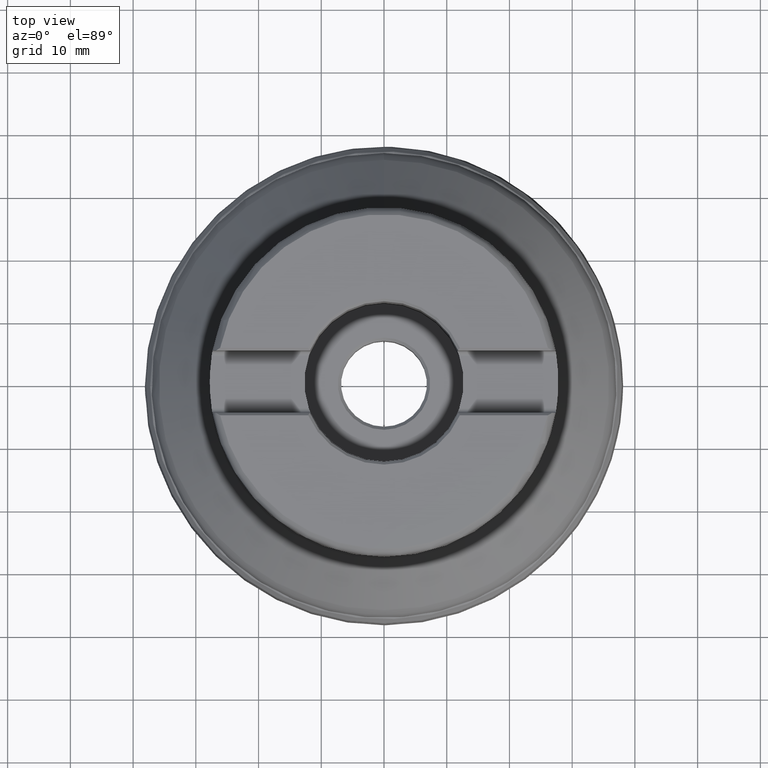
[diagram: clean part render]
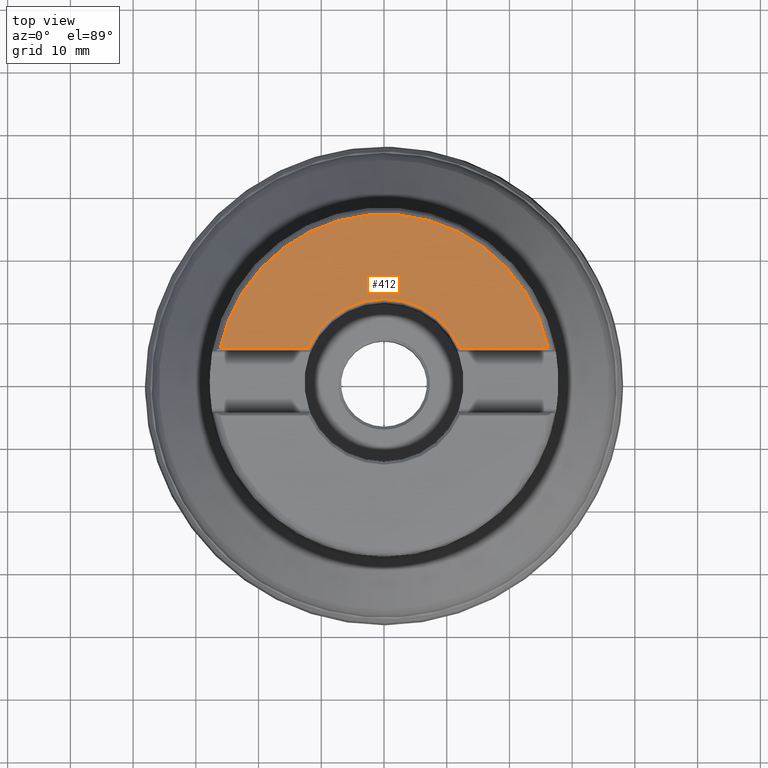
[diagram: same view with one face highlighted and labeled with its STEP entity id]
A machine part, top view. The second image highlights one B-rep face of the part: STEP entity #412.
In plain terms, the highlighted planar face has unit normal (0, 0, 1).
Its self-contained STEP definition (entity closure, byte-faithful):
#302=PLANE('',#1293);
#307=LINE('',#1933,#334);
#309=LINE('',#1953,#336);
#334=VECTOR('',#1332,1.);
#336=VECTOR('',#1344,1.);
#412=ADVANCED_FACE('',(#473),#302,.T.);
#473=FACE_OUTER_BOUND('',#555,.T.);
#555=EDGE_LOOP('',(#857,#858,#859,#860));
#604=CIRCLE('',#1195,26.6717797887081);
#608=CIRCLE('',#1203,13.2368226782816);
#857=ORIENTED_EDGE('',*,*,#1007,.F.);
#858=ORIENTED_EDGE('',*,*,#1025,.F.);
#859=ORIENTED_EDGE('',*,*,#1022,.F.);
#860=ORIENTED_EDGE('',*,*,#1018,.F.);
#910=VERTEX_POINT('',#1855);
#911=VERTEX_POINT('',#1857);
#921=VERTEX_POINT('',#1934);
#924=VERTEX_POINT('',#1945);
#1007=EDGE_CURVE('',#910,#911,#604,.T.);
#1018=EDGE_CURVE('',#911,#921,#307,.T.);
#1022=EDGE_CURVE('',#921,#924,#608,.T.);
#1025=EDGE_CURVE('',#924,#910,#309,.T.);
#1195=AXIS2_PLACEMENT_3D('',#1856,#1320,#1321);
#1203=AXIS2_PLACEMENT_3D('',#1944,#1338,#1339);
#1293=AXIS2_PLACEMENT_3D('',#2282,#1540,#1541);
#1320=DIRECTION('',(0.,-1.17145536458252E-15,-1.));
#1321=DIRECTION('',(0.,-1.,1.30079319019515E-15));
#1332=DIRECTION('',(-1.,0.,0.));
#1338=DIRECTION('',(0.,1.17145536458252E-15,1.));
#1339=DIRECTION('',(0.,-1.,1.04842288403429E-15));
#1344=DIRECTION('',(-1.,0.,0.));
#1540=DIRECTION('',(0.,1.17145536458252E-15,1.));
#1541=DIRECTION('',(0.,-1.,1.17267306976032E-15));
#1855=CARTESIAN_POINT('',(-26.1266264967025,5.36499999999294,44.4499999999929));
#1856=CARTESIAN_POINT('',(0.,5.20711909556932E-14,44.45));
#1857=CARTESIAN_POINT('',(26.1266264966842,5.36500000000004,44.45));
#1933=CARTESIAN_POINT('',(-39.,5.36500000000004,44.45));
#1934=CARTESIAN_POINT('',(12.1008367320723,5.36500000000004,44.45));
#1944=CARTESIAN_POINT('',(0.,5.20711909556932E-14,44.45));
#1945=CARTESIAN_POINT('',(-12.1008367320723,5.36500000000004,44.45));
#1953=CARTESIAN_POINT('',(-39.,5.36500000000004,44.45));
#2282=CARTESIAN_POINT('',(0.,5.20711909556932E-14,44.45));